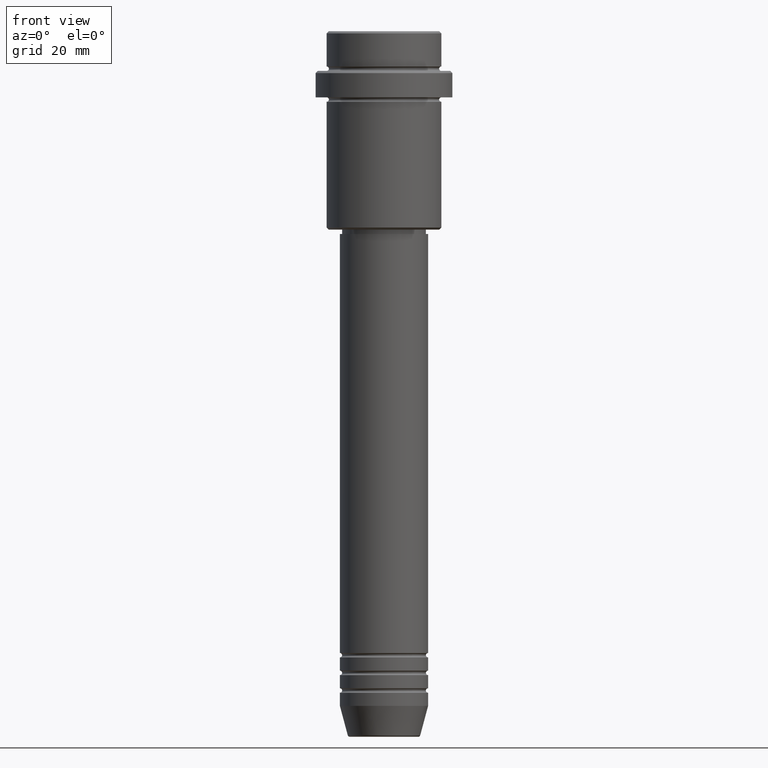
[diagram: clean part render]
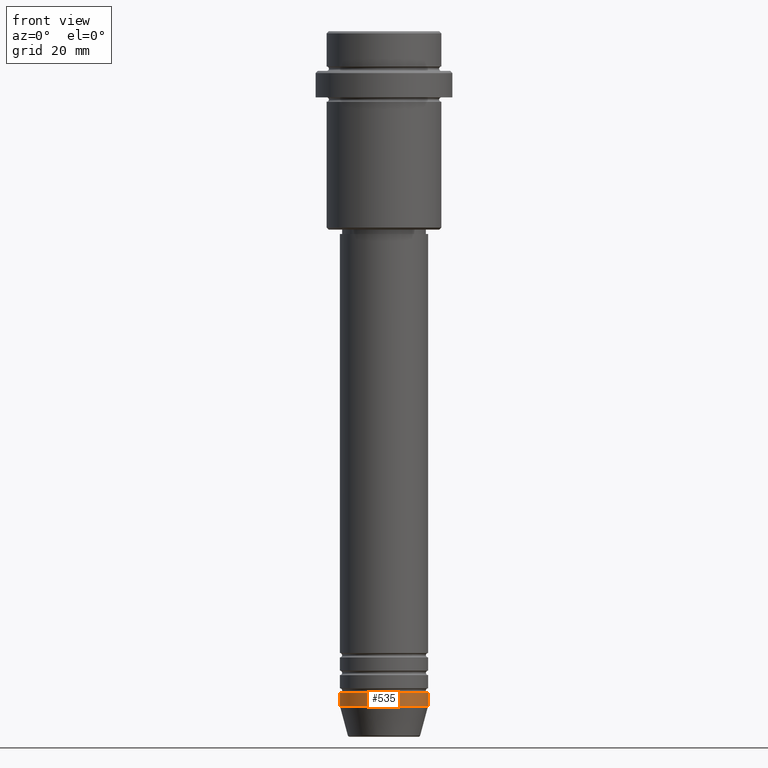
[diagram: same view with one face highlighted and labeled with its STEP entity id]
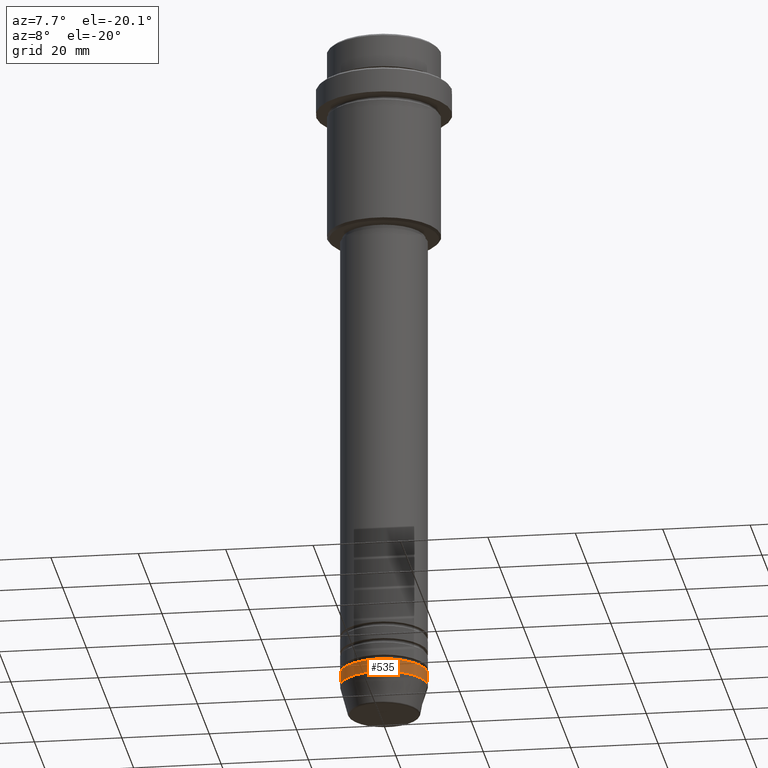
[diagram: same view with one face highlighted and labeled with its STEP entity id]
A machine part, front view. The second image highlights one B-rep face of the part: STEP entity #535.
A second angle (auxiliary view) of the same face is appended — the face is thin or edge-on in the first view.
In plain terms, the highlighted cylindrical surface (partial cylindrical patch) has radius 10 mm, axis along (-0, -0, 1).
Its self-contained STEP definition (entity closure, byte-faithful):
#4 = FACE_OUTER_BOUND ( 'NONE', #326, .T. ) ;
#24 = CARTESIAN_POINT ( 'NONE',  ( -10.00000000000000000, 1.224646799147353256E-15, -150.0000000000000000 ) ) ;
#55 = DIRECTION ( 'NONE',  ( -0.000000000000000000, -0.000000000000000000, 1.000000000000000000 ) ) ;
#68 = AXIS2_PLACEMENT_3D ( 'NONE', #292, #1379, #593 ) ;
#74 = CARTESIAN_POINT ( 'NONE',  ( -10.00000000000000000, 1.224646799147353256E-15, 0.000000000000000000 ) ) ;
#75 = EDGE_CURVE ( 'NONE', #319, #734, #201, .T. ) ;
#156 = DIRECTION ( 'NONE',  ( 1.000000000000000000, 0.000000000000000000, 0.000000000000000000 ) ) ;
#158 = ORIENTED_EDGE ( 'NONE', *, *, #416, .F. ) ;
#199 = AXIS2_PLACEMENT_3D ( 'NONE', #1251, #55, #156 ) ;
#201 = CIRCLE ( 'NONE', #68, 10.00000000000000000 ) ;
#292 = CARTESIAN_POINT ( 'NONE',  ( 0.000000000000000000, 0.000000000000000000, -153.0000000000000000 ) ) ;
#312 = CYLINDRICAL_SURFACE ( 'NONE', #1269, 10.00000000000000000 ) ;
#319 = VERTEX_POINT ( 'NONE', #454 ) ;
#326 = EDGE_LOOP ( 'NONE', ( #158, #328, #373, #525 ) ) ;
#328 = ORIENTED_EDGE ( 'NONE', *, *, #75, .T. ) ;
#337 = CIRCLE ( 'NONE', #199, 10.00000000000000000 ) ;
#357 = VECTOR ( 'NONE', #1063, 1000.000000000000000 ) ;
#364 = CARTESIAN_POINT ( 'NONE',  ( 10.00000000000000000, 0.000000000000000000, -150.0000000000000000 ) ) ;
#373 = ORIENTED_EDGE ( 'NONE', *, *, #1010, .T. ) ;
#416 = EDGE_CURVE ( 'NONE', #319, #1243, #700, .T. ) ;
#454 = CARTESIAN_POINT ( 'NONE',  ( -10.00000000000000000, 1.224646799147353256E-15, -153.0000000000000000 ) ) ;
#522 = CARTESIAN_POINT ( 'NONE',  ( 10.00000000000000000, 0.000000000000000000, 0.000000000000000000 ) ) ;
#525 = ORIENTED_EDGE ( 'NONE', *, *, #823, .F. ) ;
#535 = ADVANCED_FACE ( 'NONE', ( #4 ), #312, .T. ) ;
#593 = DIRECTION ( 'NONE',  ( 1.000000000000000000, 0.000000000000000000, 0.000000000000000000 ) ) ;
#672 = CARTESIAN_POINT ( 'NONE',  ( 10.00000000000000000, 0.000000000000000000, -153.0000000000000000 ) ) ;
#700 = LINE ( 'NONE', #74, #1097 ) ;
#703 = VERTEX_POINT ( 'NONE', #364 ) ;
#734 = VERTEX_POINT ( 'NONE', #672 ) ;
#761 = DIRECTION ( 'NONE',  ( -0.000000000000000000, -0.000000000000000000, 1.000000000000000000 ) ) ;
#823 = EDGE_CURVE ( 'NONE', #1243, #703, #337, .T. ) ;
#981 = DIRECTION ( 'NONE',  ( 1.000000000000000000, 0.000000000000000000, 0.000000000000000000 ) ) ;
#1010 = EDGE_CURVE ( 'NONE', #734, #703, #1305, .T. ) ;
#1063 = DIRECTION ( 'NONE',  ( -0.000000000000000000, -0.000000000000000000, 1.000000000000000000 ) ) ;
#1097 = VECTOR ( 'NONE', #1364, 1000.000000000000000 ) ;
#1184 = CARTESIAN_POINT ( 'NONE',  ( 0.000000000000000000, 0.000000000000000000, 0.000000000000000000 ) ) ;
#1243 = VERTEX_POINT ( 'NONE', #24 ) ;
#1251 = CARTESIAN_POINT ( 'NONE',  ( 0.000000000000000000, 0.000000000000000000, -150.0000000000000000 ) ) ;
#1269 = AXIS2_PLACEMENT_3D ( 'NONE', #1184, #761, #981 ) ;
#1305 = LINE ( 'NONE', #522, #357 ) ;
#1364 = DIRECTION ( 'NONE',  ( -0.000000000000000000, -0.000000000000000000, 1.000000000000000000 ) ) ;
#1379 = DIRECTION ( 'NONE',  ( -0.000000000000000000, -0.000000000000000000, 1.000000000000000000 ) ) ;